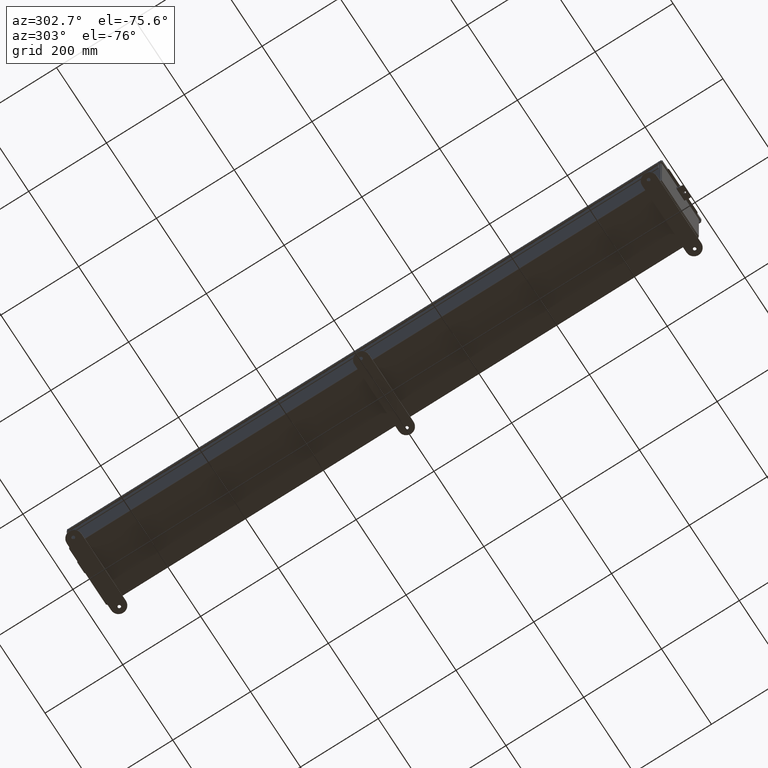
[diagram: clean part render]
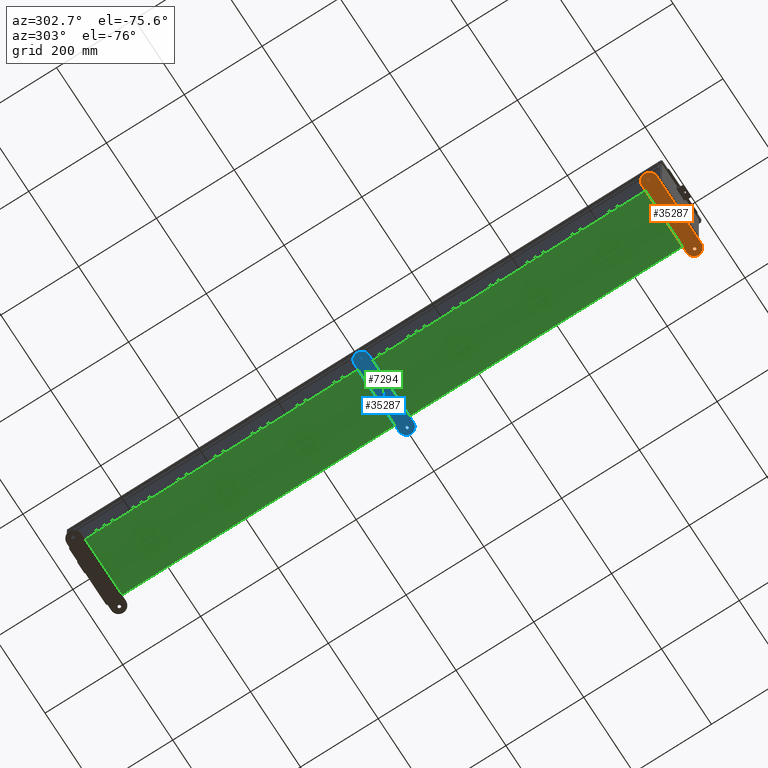
[diagram: same view with three faces highlighted in distinct colors, each labeled with its STEP entity id]
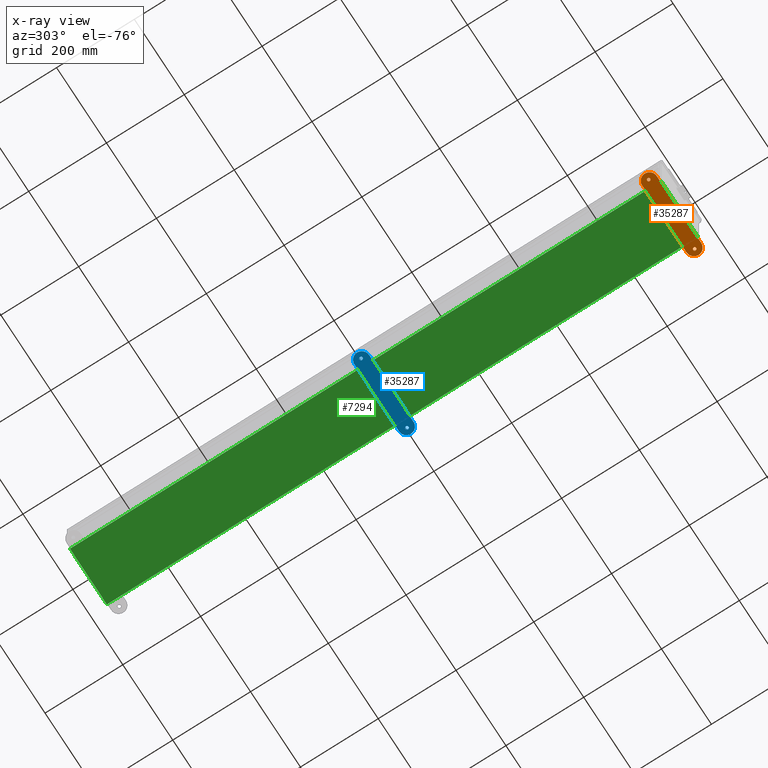
[diagram: x-ray of the same camera — body ghosted, the three highlighted faces saturated]
A machine part, auxiliary view with three faces highlighted in distinct colors.
The next image is the same camera in x-ray (body ghosted, the three faces saturated) — at least one of them is partly hidden behind the body in this view.
Their STEP definitions:

[orange] entity #35287 — the highlighted planar face has unit normal (0, 0, -1).
#4 = DIRECTION ( 'NONE',  ( 0.0000000000000000000, 0.0000000000000000000, 1.000000000000000000 ) ) ;
#723 = CARTESIAN_POINT ( 'NONE',  ( -3.499999999999998700, -0.3379059350503874600, -0.1345000000000000100 ) ) ;
#1162 = CARTESIAN_POINT ( 'NONE',  ( -3.468500000000001000, 0.4120940649496087600, -0.1345000000000000100 ) ) ;
#1613 = CARTESIAN_POINT ( 'NONE',  ( 3.625000000000000400, 0.4120940649496087600, -0.1345000000000000100 ) ) ;
#3074 = DIRECTION ( 'NONE',  ( -1.000000000000000000, 0.0000000000000000000, 0.0000000000000000000 ) ) ;
#3426 = ORIENTED_EDGE ( 'NONE', *, *, #31467, .F. ) ;
#3471 = ORIENTED_EDGE ( 'NONE', *, *, #9695, .F. ) ;
#4992 = DIRECTION ( 'NONE',  ( -1.000000000000000000, 0.0000000000000000000, 0.0000000000000000000 ) ) ;
#5334 = EDGE_CURVE ( 'NONE', #33036, #6810, #12234, .T. ) ;
#6810 = VERTEX_POINT ( 'NONE', #10872 ) ;
#7621 = DIRECTION ( 'NONE',  ( -0.0000000000000000000, 0.0000000000000000000, -1.000000000000000000 ) ) ;
#8488 = CARTESIAN_POINT ( 'NONE',  ( 3.625000000000000400, 0.4120940649496087600, -0.1345000000000000100 ) ) ;
#8550 = CARTESIAN_POINT ( 'NONE',  ( -3.625000000000000400, 0.4120940649496087600, -0.1345000000000000100 ) ) ;
#9084 = CIRCLE ( 'NONE', #37913, 0.7499999999999998900 ) ;
#9695 = EDGE_CURVE ( 'NONE', #11685, #14520, #34583, .T. ) ;
#10872 = CARTESIAN_POINT ( 'NONE',  ( 3.468500000000001000, 0.4120940649496087600, -0.1345000000000000100 ) ) ;
#11685 = VERTEX_POINT ( 'NONE', #723 ) ;
#11863 = DIRECTION ( 'NONE',  ( -1.000000000000000000, 0.0000000000000000000, 0.0000000000000000000 ) ) ;
#11919 = DIRECTION ( 'NONE',  ( -1.000000000000000000, 0.0000000000000000000, 0.0000000000000000000 ) ) ;
#12234 = CIRCLE ( 'NONE', #30542, 0.1564999999999992800 ) ;
#12594 = CARTESIAN_POINT ( 'NONE',  ( -3.499999999999998700, 0.4120940649496127000, -0.1345000000000000100 ) ) ;
#13323 = CIRCLE ( 'NONE', #32442, 0.1564999999999992800 ) ;
#13342 = EDGE_LOOP ( 'NONE', ( #28379, #42061 ) ) ;
#13616 = EDGE_CURVE ( 'NONE', #21261, #30949, #23297, .T. ) ;
#14080 = AXIS2_PLACEMENT_3D ( 'NONE', #41169, #7621, #31161 ) ;
#14100 = EDGE_CURVE ( 'NONE', #22283, #39530, #41145, .T. ) ;
#14162 = CARTESIAN_POINT ( 'NONE',  ( -3.499999999999998700, 1.162094064949613000, -0.1345000000000000100 ) ) ;
#14335 = VECTOR ( 'NONE', #37690, 39.37007874015748100 ) ;
#14520 = VERTEX_POINT ( 'NONE', #36152 ) ;
#15578 = AXIS2_PLACEMENT_3D ( 'NONE', #43381, #23257, #3074 ) ;
#15992 = DIRECTION ( 'NONE',  ( 1.000000000000000000, 0.0000000000000000000, 0.0000000000000000000 ) ) ;
#18737 = CARTESIAN_POINT ( 'NONE',  ( 3.500000000000000000, 0.4120940649496125900, -0.1345000000000000100 ) ) ;
#19708 = FACE_BOUND ( 'NONE', #13342, .T. ) ;
#19884 = AXIS2_PLACEMENT_3D ( 'NONE', #20172, #4, #23567 ) ;
#19894 = CARTESIAN_POINT ( 'NONE',  ( -3.499999999999998700, 1.162094064949613000, -0.1345000000000000100 ) ) ;
#20172 = CARTESIAN_POINT ( 'NONE',  ( 3.500000000000000000, 0.4120940649496125900, -0.1345000000000000100 ) ) ;
#20597 = AXIS2_PLACEMENT_3D ( 'NONE', #18737, #42297, #22152 ) ;
#21167 = CIRCLE ( 'NONE', #19884, 0.7500000000000010000 ) ;
#21261 = VERTEX_POINT ( 'NONE', #39778 ) ;
#22152 = DIRECTION ( 'NONE',  ( -1.000000000000000000, 0.0000000000000000000, 0.0000000000000000000 ) ) ;
#22283 = VERTEX_POINT ( 'NONE', #1162 ) ;
#22437 = CARTESIAN_POINT ( 'NONE',  ( -3.499999999999998700, -0.3379059350503874600, -0.1345000000000000100 ) ) ;
#22881 = FACE_OUTER_BOUND ( 'NONE', #24709, .T. ) ;
#23257 = DIRECTION ( 'NONE',  ( 0.0000000000000000000, 0.0000000000000000000, 1.000000000000000000 ) ) ;
#23297 = LINE ( 'NONE', #14162, #14335 ) ;
#23567 = DIRECTION ( 'NONE',  ( -1.000000000000000000, 0.0000000000000000000, 0.0000000000000000000 ) ) ;
#23568 = CIRCLE ( 'NONE', #25869, 0.1564999999999992800 ) ;
#24709 = EDGE_LOOP ( 'NONE', ( #29125, #3471, #3426, #29614, #40683 ) ) ;
#25161 = DIRECTION ( 'NONE',  ( -0.0000000000000000000, -0.0000000000000000000, -1.000000000000000000 ) ) ;
#25308 = CARTESIAN_POINT ( 'NONE',  ( 3.781499999999999400, 0.4120940649496087600, -0.1345000000000000100 ) ) ;
#25624 = VECTOR ( 'NONE', #35952, 39.37007874015748100 ) ;
#25869 = AXIS2_PLACEMENT_3D ( 'NONE', #8488, #32028, #11863 ) ;
#27740 = CARTESIAN_POINT ( 'NONE',  ( -3.781499999999999400, 0.4120940649496087600, -0.1345000000000000100 ) ) ;
#27780 = PLANE ( 'NONE',  #14080 ) ;
#28068 = CIRCLE ( 'NONE', #20597, 0.7500000000000010000 ) ;
#28379 = ORIENTED_EDGE ( 'NONE', *, *, #14100, .T. ) ;
#29125 = ORIENTED_EDGE ( 'NONE', *, *, #40545, .F. ) ;
#29614 = ORIENTED_EDGE ( 'NONE', *, *, #13616, .F. ) ;
#30542 = AXIS2_PLACEMENT_3D ( 'NONE', #1613, #25161, #4992 ) ;
#30949 = VERTEX_POINT ( 'NONE', #19894 ) ;
#31161 = DIRECTION ( 'NONE',  ( -1.000000000000000000, 0.0000000000000000000, 0.0000000000000000000 ) ) ;
#31467 = EDGE_CURVE ( 'NONE', #30949, #11685, #9084, .T. ) ;
#32028 = DIRECTION ( 'NONE',  ( -0.0000000000000000000, -0.0000000000000000000, -1.000000000000000000 ) ) ;
#32083 = DIRECTION ( 'NONE',  ( 0.0000000000000000000, 0.0000000000000000000, 1.000000000000000000 ) ) ;
#32442 = AXIS2_PLACEMENT_3D ( 'NONE', #8550, #32083, #11919 ) ;
#32605 = EDGE_LOOP ( 'NONE', ( #42169, #38254 ) ) ;
#33036 = VERTEX_POINT ( 'NONE', #25308 ) ;
#33631 = EDGE_CURVE ( 'NONE', #6810, #33036, #23568, .T. ) ;
#34583 = LINE ( 'NONE', #22437, #25624 ) ;
#35287 = ADVANCED_FACE ( 'NONE', ( #22881, #19708, #37594 ), #27780, .T. ) ;
#35540 = VERTEX_POINT ( 'NONE', #39189 ) ;
#35952 = DIRECTION ( 'NONE',  ( 1.000000000000000000, -1.170791997284684700E-016, 0.0000000000000000000 ) ) ;
#35994 = EDGE_CURVE ( 'NONE', #35540, #21261, #28068, .T. ) ;
#36151 = DIRECTION ( 'NONE',  ( 0.0000000000000000000, 0.0000000000000000000, 1.000000000000000000 ) ) ;
#36152 = CARTESIAN_POINT ( 'NONE',  ( 3.499999999999998700, -0.3379059350503883000, -0.1345000000000000100 ) ) ;
#36606 = EDGE_CURVE ( 'NONE', #39530, #22283, #13323, .T. ) ;
#37594 = FACE_BOUND ( 'NONE', #32605, .T. ) ;
#37690 = DIRECTION ( 'NONE',  ( -1.000000000000000000, -1.170791997284684700E-016, -0.0000000000000000000 ) ) ;
#37913 = AXIS2_PLACEMENT_3D ( 'NONE', #12594, #36151, #15992 ) ;
#38254 = ORIENTED_EDGE ( 'NONE', *, *, #33631, .F. ) ;
#39189 = CARTESIAN_POINT ( 'NONE',  ( 4.250000000000000900, 0.4120940649496125900, -0.1345000000000000100 ) ) ;
#39530 = VERTEX_POINT ( 'NONE', #27740 ) ;
#39778 = CARTESIAN_POINT ( 'NONE',  ( 3.499999999999998700, 1.162094064949613600, -0.1345000000000000100 ) ) ;
#40545 = EDGE_CURVE ( 'NONE', #14520, #35540, #21167, .T. ) ;
#40683 = ORIENTED_EDGE ( 'NONE', *, *, #35994, .F. ) ;
#41145 = CIRCLE ( 'NONE', #15578, 0.1564999999999992800 ) ;
#41169 = CARTESIAN_POINT ( 'NONE',  ( 3.500000000000000000, 0.4120940649496125900, -0.1345000000000000100 ) ) ;
#42061 = ORIENTED_EDGE ( 'NONE', *, *, #36606, .T. ) ;
#42169 = ORIENTED_EDGE ( 'NONE', *, *, #5334, .F. ) ;
#42297 = DIRECTION ( 'NONE',  ( 0.0000000000000000000, 0.0000000000000000000, 1.000000000000000000 ) ) ;
#43381 = CARTESIAN_POINT ( 'NONE',  ( -3.625000000000000400, 0.4120940649496087600, -0.1345000000000000100 ) ) ;

[blue] entity #35287 — the highlighted planar face has unit normal (0, 0, -1).
#4 = DIRECTION ( 'NONE',  ( 0.0000000000000000000, 0.0000000000000000000, 1.000000000000000000 ) ) ;
#723 = CARTESIAN_POINT ( 'NONE',  ( -3.499999999999998700, -0.3379059350503874600, -0.1345000000000000100 ) ) ;
#1162 = CARTESIAN_POINT ( 'NONE',  ( -3.468500000000001000, 0.4120940649496087600, -0.1345000000000000100 ) ) ;
#1613 = CARTESIAN_POINT ( 'NONE',  ( 3.625000000000000400, 0.4120940649496087600, -0.1345000000000000100 ) ) ;
#3074 = DIRECTION ( 'NONE',  ( -1.000000000000000000, 0.0000000000000000000, 0.0000000000000000000 ) ) ;
#3426 = ORIENTED_EDGE ( 'NONE', *, *, #31467, .F. ) ;
#3471 = ORIENTED_EDGE ( 'NONE', *, *, #9695, .F. ) ;
#4992 = DIRECTION ( 'NONE',  ( -1.000000000000000000, 0.0000000000000000000, 0.0000000000000000000 ) ) ;
#5334 = EDGE_CURVE ( 'NONE', #33036, #6810, #12234, .T. ) ;
#6810 = VERTEX_POINT ( 'NONE', #10872 ) ;
#7621 = DIRECTION ( 'NONE',  ( -0.0000000000000000000, 0.0000000000000000000, -1.000000000000000000 ) ) ;
#8488 = CARTESIAN_POINT ( 'NONE',  ( 3.625000000000000400, 0.4120940649496087600, -0.1345000000000000100 ) ) ;
#8550 = CARTESIAN_POINT ( 'NONE',  ( -3.625000000000000400, 0.4120940649496087600, -0.1345000000000000100 ) ) ;
#9084 = CIRCLE ( 'NONE', #37913, 0.7499999999999998900 ) ;
#9695 = EDGE_CURVE ( 'NONE', #11685, #14520, #34583, .T. ) ;
#10872 = CARTESIAN_POINT ( 'NONE',  ( 3.468500000000001000, 0.4120940649496087600, -0.1345000000000000100 ) ) ;
#11685 = VERTEX_POINT ( 'NONE', #723 ) ;
#11863 = DIRECTION ( 'NONE',  ( -1.000000000000000000, 0.0000000000000000000, 0.0000000000000000000 ) ) ;
#11919 = DIRECTION ( 'NONE',  ( -1.000000000000000000, 0.0000000000000000000, 0.0000000000000000000 ) ) ;
#12234 = CIRCLE ( 'NONE', #30542, 0.1564999999999992800 ) ;
#12594 = CARTESIAN_POINT ( 'NONE',  ( -3.499999999999998700, 0.4120940649496127000, -0.1345000000000000100 ) ) ;
#13323 = CIRCLE ( 'NONE', #32442, 0.1564999999999992800 ) ;
#13342 = EDGE_LOOP ( 'NONE', ( #28379, #42061 ) ) ;
#13616 = EDGE_CURVE ( 'NONE', #21261, #30949, #23297, .T. ) ;
#14080 = AXIS2_PLACEMENT_3D ( 'NONE', #41169, #7621, #31161 ) ;
#14100 = EDGE_CURVE ( 'NONE', #22283, #39530, #41145, .T. ) ;
#14162 = CARTESIAN_POINT ( 'NONE',  ( -3.499999999999998700, 1.162094064949613000, -0.1345000000000000100 ) ) ;
#14335 = VECTOR ( 'NONE', #37690, 39.37007874015748100 ) ;
#14520 = VERTEX_POINT ( 'NONE', #36152 ) ;
#15578 = AXIS2_PLACEMENT_3D ( 'NONE', #43381, #23257, #3074 ) ;
#15992 = DIRECTION ( 'NONE',  ( 1.000000000000000000, 0.0000000000000000000, 0.0000000000000000000 ) ) ;
#18737 = CARTESIAN_POINT ( 'NONE',  ( 3.500000000000000000, 0.4120940649496125900, -0.1345000000000000100 ) ) ;
#19708 = FACE_BOUND ( 'NONE', #13342, .T. ) ;
#19884 = AXIS2_PLACEMENT_3D ( 'NONE', #20172, #4, #23567 ) ;
#19894 = CARTESIAN_POINT ( 'NONE',  ( -3.499999999999998700, 1.162094064949613000, -0.1345000000000000100 ) ) ;
#20172 = CARTESIAN_POINT ( 'NONE',  ( 3.500000000000000000, 0.4120940649496125900, -0.1345000000000000100 ) ) ;
#20597 = AXIS2_PLACEMENT_3D ( 'NONE', #18737, #42297, #22152 ) ;
#21167 = CIRCLE ( 'NONE', #19884, 0.7500000000000010000 ) ;
#21261 = VERTEX_POINT ( 'NONE', #39778 ) ;
#22152 = DIRECTION ( 'NONE',  ( -1.000000000000000000, 0.0000000000000000000, 0.0000000000000000000 ) ) ;
#22283 = VERTEX_POINT ( 'NONE', #1162 ) ;
#22437 = CARTESIAN_POINT ( 'NONE',  ( -3.499999999999998700, -0.3379059350503874600, -0.1345000000000000100 ) ) ;
#22881 = FACE_OUTER_BOUND ( 'NONE', #24709, .T. ) ;
#23257 = DIRECTION ( 'NONE',  ( 0.0000000000000000000, 0.0000000000000000000, 1.000000000000000000 ) ) ;
#23297 = LINE ( 'NONE', #14162, #14335 ) ;
#23567 = DIRECTION ( 'NONE',  ( -1.000000000000000000, 0.0000000000000000000, 0.0000000000000000000 ) ) ;
#23568 = CIRCLE ( 'NONE', #25869, 0.1564999999999992800 ) ;
#24709 = EDGE_LOOP ( 'NONE', ( #29125, #3471, #3426, #29614, #40683 ) ) ;
#25161 = DIRECTION ( 'NONE',  ( -0.0000000000000000000, -0.0000000000000000000, -1.000000000000000000 ) ) ;
#25308 = CARTESIAN_POINT ( 'NONE',  ( 3.781499999999999400, 0.4120940649496087600, -0.1345000000000000100 ) ) ;
#25624 = VECTOR ( 'NONE', #35952, 39.37007874015748100 ) ;
#25869 = AXIS2_PLACEMENT_3D ( 'NONE', #8488, #32028, #11863 ) ;
#27740 = CARTESIAN_POINT ( 'NONE',  ( -3.781499999999999400, 0.4120940649496087600, -0.1345000000000000100 ) ) ;
#27780 = PLANE ( 'NONE',  #14080 ) ;
#28068 = CIRCLE ( 'NONE', #20597, 0.7500000000000010000 ) ;
#28379 = ORIENTED_EDGE ( 'NONE', *, *, #14100, .T. ) ;
#29125 = ORIENTED_EDGE ( 'NONE', *, *, #40545, .F. ) ;
#29614 = ORIENTED_EDGE ( 'NONE', *, *, #13616, .F. ) ;
#30542 = AXIS2_PLACEMENT_3D ( 'NONE', #1613, #25161, #4992 ) ;
#30949 = VERTEX_POINT ( 'NONE', #19894 ) ;
#31161 = DIRECTION ( 'NONE',  ( -1.000000000000000000, 0.0000000000000000000, 0.0000000000000000000 ) ) ;
#31467 = EDGE_CURVE ( 'NONE', #30949, #11685, #9084, .T. ) ;
#32028 = DIRECTION ( 'NONE',  ( -0.0000000000000000000, -0.0000000000000000000, -1.000000000000000000 ) ) ;
#32083 = DIRECTION ( 'NONE',  ( 0.0000000000000000000, 0.0000000000000000000, 1.000000000000000000 ) ) ;
#32442 = AXIS2_PLACEMENT_3D ( 'NONE', #8550, #32083, #11919 ) ;
#32605 = EDGE_LOOP ( 'NONE', ( #42169, #38254 ) ) ;
#33036 = VERTEX_POINT ( 'NONE', #25308 ) ;
#33631 = EDGE_CURVE ( 'NONE', #6810, #33036, #23568, .T. ) ;
#34583 = LINE ( 'NONE', #22437, #25624 ) ;
#35287 = ADVANCED_FACE ( 'NONE', ( #22881, #19708, #37594 ), #27780, .T. ) ;
#35540 = VERTEX_POINT ( 'NONE', #39189 ) ;
#35952 = DIRECTION ( 'NONE',  ( 1.000000000000000000, -1.170791997284684700E-016, 0.0000000000000000000 ) ) ;
#35994 = EDGE_CURVE ( 'NONE', #35540, #21261, #28068, .T. ) ;
#36151 = DIRECTION ( 'NONE',  ( 0.0000000000000000000, 0.0000000000000000000, 1.000000000000000000 ) ) ;
#36152 = CARTESIAN_POINT ( 'NONE',  ( 3.499999999999998700, -0.3379059350503883000, -0.1345000000000000100 ) ) ;
#36606 = EDGE_CURVE ( 'NONE', #39530, #22283, #13323, .T. ) ;
#37594 = FACE_BOUND ( 'NONE', #32605, .T. ) ;
#37690 = DIRECTION ( 'NONE',  ( -1.000000000000000000, -1.170791997284684700E-016, -0.0000000000000000000 ) ) ;
#37913 = AXIS2_PLACEMENT_3D ( 'NONE', #12594, #36151, #15992 ) ;
#38254 = ORIENTED_EDGE ( 'NONE', *, *, #33631, .F. ) ;
#39189 = CARTESIAN_POINT ( 'NONE',  ( 4.250000000000000900, 0.4120940649496125900, -0.1345000000000000100 ) ) ;
#39530 = VERTEX_POINT ( 'NONE', #27740 ) ;
#39778 = CARTESIAN_POINT ( 'NONE',  ( 3.499999999999998700, 1.162094064949613600, -0.1345000000000000100 ) ) ;
#40545 = EDGE_CURVE ( 'NONE', #14520, #35540, #21167, .T. ) ;
#40683 = ORIENTED_EDGE ( 'NONE', *, *, #35994, .F. ) ;
#41145 = CIRCLE ( 'NONE', #15578, 0.1564999999999992800 ) ;
#41169 = CARTESIAN_POINT ( 'NONE',  ( 3.500000000000000000, 0.4120940649496125900, -0.1345000000000000100 ) ) ;
#42061 = ORIENTED_EDGE ( 'NONE', *, *, #36606, .T. ) ;
#42169 = ORIENTED_EDGE ( 'NONE', *, *, #5334, .F. ) ;
#42297 = DIRECTION ( 'NONE',  ( 0.0000000000000000000, 0.0000000000000000000, 1.000000000000000000 ) ) ;
#43381 = CARTESIAN_POINT ( 'NONE',  ( -3.625000000000000400, 0.4120940649496087600, -0.1345000000000000100 ) ) ;

[green] entity #7294 — the highlighted planar face has unit normal (0, 0, -1).
#239 = VERTEX_POINT ( 'NONE', #19788 ) ;
#621 = ORIENTED_EDGE ( 'NONE', *, *, #1256, .T. ) ;
#958 = VECTOR ( 'NONE', #27439, 39.37007874015748100 ) ;
#1256 = EDGE_CURVE ( 'NONE', #40375, #26391, #43579, .T. ) ;
#1885 = VECTOR ( 'NONE', #5981, 39.37007874015748100 ) ;
#3311 = PLANE ( 'NONE',  #13141 ) ;
#4997 = FACE_OUTER_BOUND ( 'NONE', #21201, .T. ) ;
#5981 = DIRECTION ( 'NONE',  ( -1.000000000000000000, -0.0000000000000000000, -0.0000000000000000000 ) ) ;
#6828 = CARTESIAN_POINT ( 'NONE',  ( 0.0000000000000000000, 0.0000000000000000000, -0.07470000000000000300 ) ) ;
#7294 = ADVANCED_FACE ( 'NONE', ( #4997 ), #3311, .T. ) ;
#7689 = ORIENTED_EDGE ( 'NONE', *, *, #20836, .T. ) ;
#9308 = ORIENTED_EDGE ( 'NONE', *, *, #25299, .F. ) ;
#10239 = DIRECTION ( 'NONE',  ( 0.0000000000000000000, 0.0000000000000000000, -1.000000000000000000 ) ) ;
#13141 = AXIS2_PLACEMENT_3D ( 'NONE', #6828, #10239, #33775 ) ;
#14062 = CARTESIAN_POINT ( 'NONE',  ( 2.912300000000003700, 29.92529999999999300, -0.07469999999999885100 ) ) ;
#17685 = ORIENTED_EDGE ( 'NONE', *, *, #25432, .F. ) ;
#19788 = CARTESIAN_POINT ( 'NONE',  ( -2.912299999999996100, 29.92529999999999300, -0.07470000000000000300 ) ) ;
#20728 = DIRECTION ( 'NONE',  ( -0.0000000000000000000, 1.000000000000000000, 8.208677865577646300E-017 ) ) ;
#20836 = EDGE_CURVE ( 'NONE', #29188, #239, #24348, .T. ) ;
#21201 = EDGE_LOOP ( 'NONE', ( #17685, #621, #9308, #7689 ) ) ;
#21765 = CARTESIAN_POINT ( 'NONE',  ( -2.999999999999996400, -29.92530000000000400, -0.07470000000000000300 ) ) ;
#21930 = LINE ( 'NONE', #22782, #1885 ) ;
#22782 = CARTESIAN_POINT ( 'NONE',  ( -2.999999999999996400, 29.92529999999999300, -0.07470000000000000300 ) ) ;
#24035 = VECTOR ( 'NONE', #25279, 39.37007874015748100 ) ;
#24119 = CARTESIAN_POINT ( 'NONE',  ( -2.912299999999996100, -29.92529999999999300, -0.07470000000000404100 ) ) ;
#24348 = LINE ( 'NONE', #24119, #32230 ) ;
#25053 = CARTESIAN_POINT ( 'NONE',  ( 2.912300000000003700, -29.92530000000001100, -0.07470000000000000300 ) ) ;
#25279 = DIRECTION ( 'NONE',  ( 1.000000000000000000, -1.456985596620940600E-015, 0.0000000000000000000 ) ) ;
#25299 = EDGE_CURVE ( 'NONE', #29188, #26391, #32966, .T. ) ;
#25432 = EDGE_CURVE ( 'NONE', #40375, #239, #21930, .T. ) ;
#26391 = VERTEX_POINT ( 'NONE', #25053 ) ;
#27439 = DIRECTION ( 'NONE',  ( -0.0000000000000000000, -1.000000000000000000, -0.0000000000000000000 ) ) ;
#29188 = VERTEX_POINT ( 'NONE', #40815 ) ;
#29300 = CARTESIAN_POINT ( 'NONE',  ( 2.912300000000003700, 29.92529999999999300, -0.07469999999999885100 ) ) ;
#32230 = VECTOR ( 'NONE', #20728, 39.37007874015748100 ) ;
#32966 = LINE ( 'NONE', #21765, #24035 ) ;
#33775 = DIRECTION ( 'NONE',  ( -1.000000000000000000, 0.0000000000000000000, -0.0000000000000000000 ) ) ;
#40375 = VERTEX_POINT ( 'NONE', #29300 ) ;
#40815 = CARTESIAN_POINT ( 'NONE',  ( -2.912299999999996100, -29.92529999999998900, -0.07470000000000404100 ) ) ;
#43579 = LINE ( 'NONE', #14062, #958 ) ;